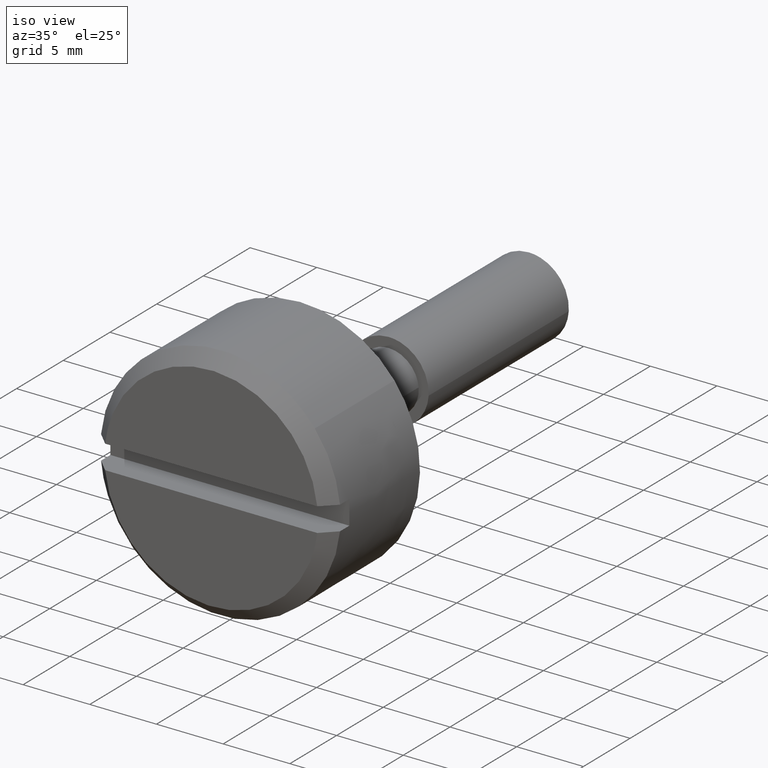
[diagram: clean part render]
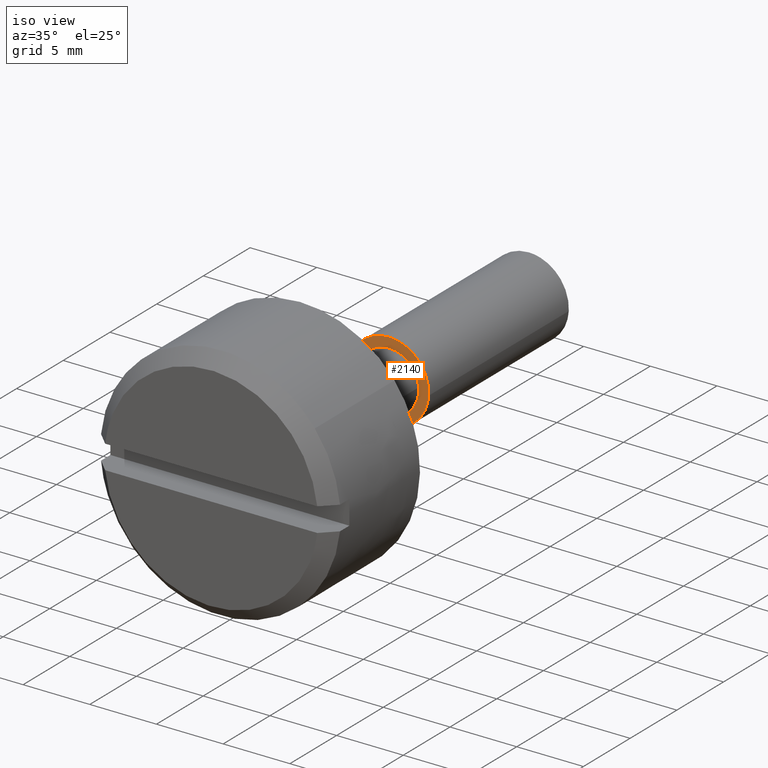
[diagram: same view with one face highlighted and labeled with its STEP entity id]
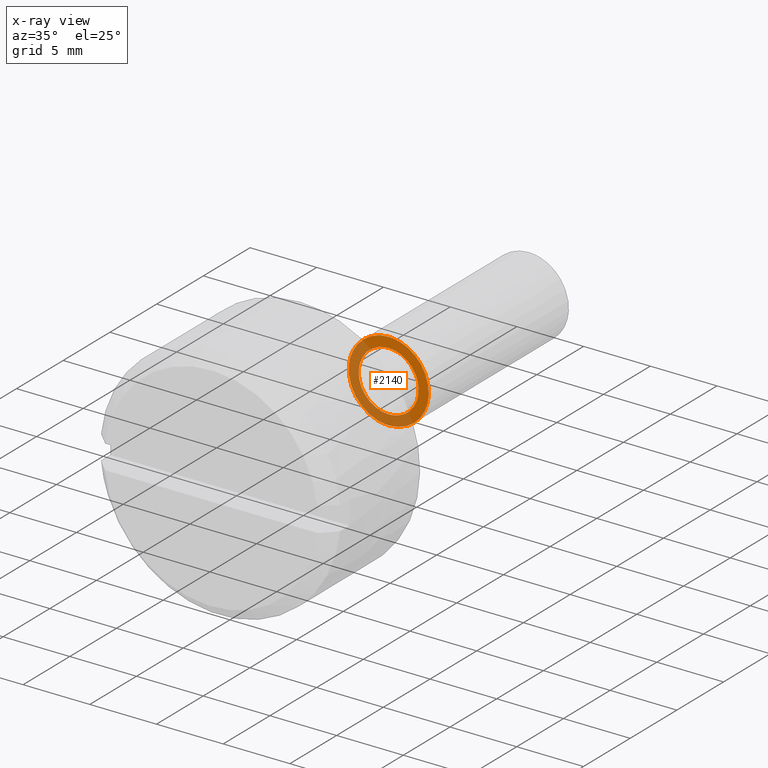
[diagram: x-ray of the same camera — body ghosted, the highlighted face saturated]
A machine part, iso view. The second image highlights one B-rep face of the part: STEP entity #2140.
The next image is the same camera in x-ray: the body ghosted, the highlighted face saturated — about 50% of this face is hidden behind the body in this view.
In plain terms, the highlighted face is a freeform B-spline surface patch.
Its self-contained STEP definition (entity closure, byte-faithful):
#1075=CARTESIAN_POINT('',(7.000000000000001,-2.994404602504011,-0.183142230223578));
#1076=VERTEX_POINT('',#1075);
#1082=CARTESIAN_POINT('',(7.0,0.0,-3.0));
#1083=VERTEX_POINT('',#1082);
#1084=CARTESIAN_POINT('',(7.0,0.0,-3.0));
#1085=CARTESIAN_POINT('',(7.0,-2.822121400113024,-3.0));
#1086=CARTESIAN_POINT('',(7.000000000000001,-2.994404602504011,-0.183142230223578));
#1094=(BOUNDED_CURVE()B_SPLINE_CURVE(2,(#1084,#1085,#1086),.UNSPECIFIED.,.F.,.U.)B_SPLINE_CURVE_WITH_KNOTS((3,3),(0.500000000000000,0.739333157490930),.UNSPECIFIED.)CURVE()GEOMETRIC_REPRESENTATION_ITEM()RATIONAL_B_SPLINE_CURVE((1.0,0.719603764534779,0.976072460129250))REPRESENTATION_ITEM(''));
#1095=EDGE_CURVE('',#1083,#1076,#1094,.T.);
#1097=CARTESIAN_POINT('',(7.0,2.979028579086541,0.354102704007787));
#1098=VERTEX_POINT('',#1097);
#1099=CARTESIAN_POINT('',(7.0,2.979028579086541,0.354102704007787));
#1100=CARTESIAN_POINT('',(7.000000000000001,3.0,0.177672358993638));
#1101=CARTESIAN_POINT('',(7.0,3.0,0.0));
#1102=CARTESIAN_POINT('',(6.999999999999999,3.0,-3.0));
#1103=CARTESIAN_POINT('',(7.0,0.0,-3.0));
#1111=(BOUNDED_CURVE()B_SPLINE_CURVE(2,(#1099,#1100,#1101,#1102,#1103),.UNSPECIFIED.,.F.,.U.)B_SPLINE_CURVE_WITH_KNOTS((3,2,3),(0.229562473511388,0.250000000000000,0.500000000000000),.UNSPECIFIED.)CURVE()GEOMETRIC_REPRESENTATION_ITEM()RATIONAL_B_SPLINE_CURVE((0.956026754179544,0.976055948328661,1.0,0.707106781186548,1.0))REPRESENTATION_ITEM(''));
#1112=EDGE_CURVE('',#1098,#1083,#1111,.T.);
#1156=CARTESIAN_POINT('',(7.0,0.0,3.0));
#1157=VERTEX_POINT('',#1156);
#1158=CARTESIAN_POINT('',(7.0,0.0,3.0));
#1159=CARTESIAN_POINT('',(6.999999999999999,2.664523577786528,3.000000000000000));
#1160=CARTESIAN_POINT('',(7.000000000000001,2.979028579086541,0.354102704007787));
#1168=(BOUNDED_CURVE()B_SPLINE_CURVE(2,(#1158,#1159,#1160),.UNSPECIFIED.,.F.,.U.)B_SPLINE_CURVE_WITH_KNOTS((3,3),(0.0,0.229562473511388),.UNSPECIFIED.)CURVE()GEOMETRIC_REPRESENTATION_ITEM()RATIONAL_B_SPLINE_CURVE((1.0,0.731050832857886,0.956026754179544))REPRESENTATION_ITEM(''));
#1169=EDGE_CURVE('',#1157,#1098,#1168,.T.);
#1171=CARTESIAN_POINT('',(7.000000000000001,-2.994404602504011,-0.183142230223578));
#1172=CARTESIAN_POINT('',(7.0,-3.000000000000000,-0.091656590955072));
#1173=CARTESIAN_POINT('',(7.0,-3.0,0.0));
#1174=CARTESIAN_POINT('',(6.999999999999999,-3.0,3.0));
#1175=CARTESIAN_POINT('',(7.0,0.0,3.0));
#1183=(BOUNDED_CURVE()B_SPLINE_CURVE(2,(#1171,#1172,#1173,#1174,#1175),.UNSPECIFIED.,.F.,.U.)B_SPLINE_CURVE_WITH_KNOTS((3,2,3),(0.739333157490930,0.750000000000000,1.0),.UNSPECIFIED.)CURVE()GEOMETRIC_REPRESENTATION_ITEM()RATIONAL_B_SPLINE_CURVE((0.976072460129250,0.987503016651769,1.0,0.707106781186548,1.0))REPRESENTATION_ITEM(''));
#1184=EDGE_CURVE('',#1076,#1157,#1183,.T.);
#1223=CARTESIAN_POINT('',(7.0,0.0,-2.250000000000000));
#1224=VERTEX_POINT('',#1223);
#1225=CARTESIAN_POINT('',(7.0,2.243064000894877,-0.176532965446879));
#1226=VERTEX_POINT('',#1225);
#1227=CARTESIAN_POINT('',(7.0,0.0,-2.250000000000000));
#1228=CARTESIAN_POINT('',(6.999999999999999,2.079878606120790,-2.250000000000001));
#1229=CARTESIAN_POINT('',(7.000000000000001,2.243064000894876,-0.176532965446879));
#1237=(BOUNDED_CURVE()B_SPLINE_CURVE(2,(#1227,#1228,#1229),.UNSPECIFIED.,.F.,.U.)B_SPLINE_CURVE_WITH_KNOTS((3,3),(0.0,0.236331300623714),.UNSPECIFIED.)CURVE()GEOMETRIC_REPRESENTATION_ITEM()RATIONAL_B_SPLINE_CURVE((1.0,0.723120658615803,0.969723356152923))REPRESENTATION_ITEM(''));
#1238=EDGE_CURVE('',#1224,#1226,#1237,.T.);
#1240=CARTESIAN_POINT('',(7.0,-2.243064000894877,0.176532965446879));
#1241=VERTEX_POINT('',#1240);
#1242=CARTESIAN_POINT('',(7.0,-2.243064000894877,0.176532965446879));
#1243=CARTESIAN_POINT('',(6.999999999999999,-2.250000000000000,0.088402740826759));
#1244=CARTESIAN_POINT('',(7.0,-2.250000000000000,0.0));
#1245=CARTESIAN_POINT('',(6.999999999999999,-2.250000000000000,-2.250000000000000));
#1246=CARTESIAN_POINT('',(7.0,0.0,-2.250000000000000));
#1254=(BOUNDED_CURVE()B_SPLINE_CURVE(2,(#1242,#1243,#1244,#1245,#1246),.UNSPECIFIED.,.F.,.U.)B_SPLINE_CURVE_WITH_KNOTS((3,2,3),(0.736331300623714,0.750000000000000,1.0),.UNSPECIFIED.)CURVE()GEOMETRIC_REPRESENTATION_ITEM()RATIONAL_B_SPLINE_CURVE((0.969723356152923,0.983986122570745,1.0,0.707106781186547,1.0))REPRESENTATION_ITEM(''));
#1255=EDGE_CURVE('',#1241,#1224,#1254,.T.);
#1322=CARTESIAN_POINT('',(7.0,0.0,2.250000000000000));
#1323=VERTEX_POINT('',#1322);
#1324=CARTESIAN_POINT('',(7.0,2.243064000894877,-0.176532965446879));
#1325=CARTESIAN_POINT('',(6.999999999999999,2.250000000000000,-0.088402740826759));
#1326=CARTESIAN_POINT('',(7.0,2.250000000000000,0.0));
#1327=CARTESIAN_POINT('',(6.999999999999999,2.250000000000000,2.250000000000000));
#1328=CARTESIAN_POINT('',(7.0,0.0,2.250000000000000));
#1336=(BOUNDED_CURVE()B_SPLINE_CURVE(2,(#1324,#1325,#1326,#1327,#1328),.UNSPECIFIED.,.F.,.U.)B_SPLINE_CURVE_WITH_KNOTS((3,2,3),(0.236331300623714,0.250000000000000,0.500000000000000),.UNSPECIFIED.)CURVE()GEOMETRIC_REPRESENTATION_ITEM()RATIONAL_B_SPLINE_CURVE((0.969723356152923,0.983986122570745,1.0,0.707106781186547,1.0))REPRESENTATION_ITEM(''));
#1337=EDGE_CURVE('',#1226,#1323,#1336,.T.);
#1371=CARTESIAN_POINT('',(7.0,0.0,2.250000000000000));
#1372=CARTESIAN_POINT('',(6.999999999999999,-2.079878606120780,2.250000000000000));
#1373=CARTESIAN_POINT('',(7.0,-2.243064000894877,0.176532965446879));
#1381=(BOUNDED_CURVE()B_SPLINE_CURVE(2,(#1371,#1372,#1373),.UNSPECIFIED.,.F.,.U.)B_SPLINE_CURVE_WITH_KNOTS((3,3),(0.500000000000000,0.736331300623713),.UNSPECIFIED.)CURVE()GEOMETRIC_REPRESENTATION_ITEM()RATIONAL_B_SPLINE_CURVE((1.0,0.723120658615804,0.969723356152921))REPRESENTATION_ITEM(''));
#1382=EDGE_CURVE('',#1323,#1241,#1381,.T.);
#2123=CARTESIAN_POINT('',(7.0,-3.299626971037357,3.299699988370835));
#2124=CARTESIAN_POINT('',(7.0,-3.299626971037357,-3.299700149303376));
#2125=CARTESIAN_POINT('',(7.0,3.299645424635379,3.299699988370835));
#2126=CARTESIAN_POINT('',(7.0,3.299645424635379,-3.299700149303376));
#2127=B_SPLINE_SURFACE_WITH_KNOTS('',1,1,((#2123,#2125),(#2124,#2126)),.UNSPECIFIED.,.F.,.F.,.U.,(2,2),(2,2),(0.0,6.599400137674212),(0.0,6.599272395672736),.UNSPECIFIED.);
#2128=ORIENTED_EDGE('',*,*,#1169,.T.);
#2129=ORIENTED_EDGE('',*,*,#1112,.T.);
#2130=ORIENTED_EDGE('',*,*,#1095,.T.);
#2131=ORIENTED_EDGE('',*,*,#1184,.T.);
#2132=EDGE_LOOP('',(#2128,#2129,#2130,#2131));
#2133=FACE_OUTER_BOUND('',#2132,.T.);
#2134=ORIENTED_EDGE('',*,*,#1382,.T.);
#2135=ORIENTED_EDGE('',*,*,#1255,.T.);
#2136=ORIENTED_EDGE('',*,*,#1238,.T.);
#2137=ORIENTED_EDGE('',*,*,#1337,.T.);
#2138=EDGE_LOOP('',(#2134,#2135,#2136,#2137));
#2139=FACE_BOUND('',#2138,.T.);
#2140=ADVANCED_FACE('',(#2133,#2139),#2127,.F.);